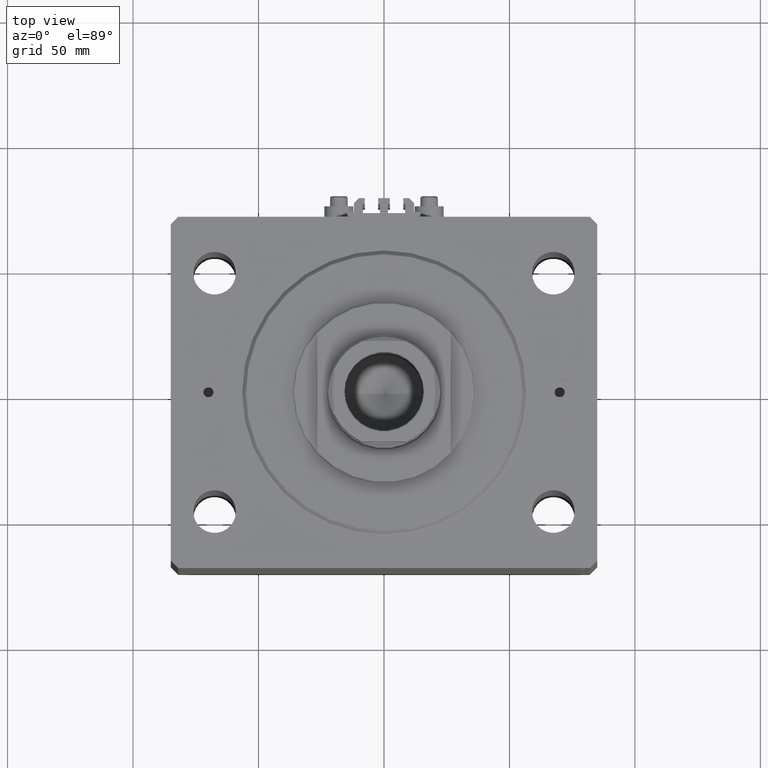
[diagram: clean part render]
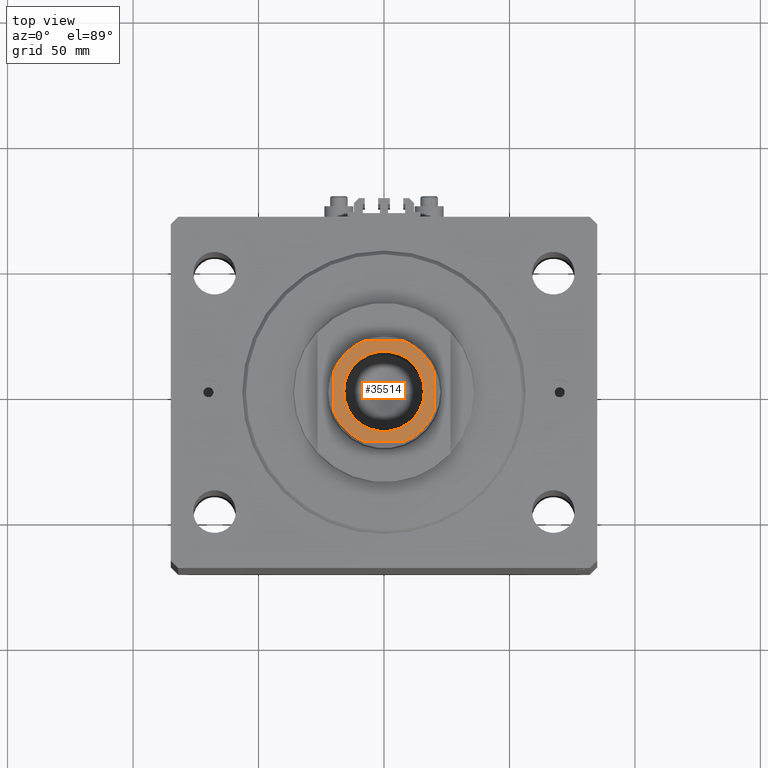
[diagram: same view with one face highlighted and labeled with its STEP entity id]
A machine part, top view. The second image highlights one B-rep face of the part: STEP entity #35514.
In plain terms, the highlighted planar face has unit normal (0, 0, 1).
Its self-contained STEP definition (entity closure, byte-faithful):
#1074 = CARTESIAN_POINT ( 'NONE',  ( 19.99999999999999645, 20.00000000000000000, 155.1000000000000227 ) ) ;
#1153 = CARTESIAN_POINT ( 'NONE',  ( 0.000000000000000000, 0.000000000000000000, 155.1000000000000227 ) ) ;
#1387 = DIRECTION ( 'NONE',  ( 1.000000000000000000, 0.000000000000000000, 0.000000000000000000 ) ) ;
#1758 = VERTEX_POINT ( 'NONE', #12999 ) ;
#3691 = CARTESIAN_POINT ( 'NONE',  ( -20.00000000000000355, 7.889866919029741688, 155.1000000000000227 ) ) ;
#4238 = CARTESIAN_POINT ( 'NONE',  ( 0.000000000000000000, 0.000000000000000000, 155.1000000000000227 ) ) ;
#4276 = ORIENTED_EDGE ( 'NONE', *, *, #17454, .T. ) ;
#4948 = CIRCLE ( 'NONE', #14820, 21.50000000000000000 ) ;
#5148 = AXIS2_PLACEMENT_3D ( 'NONE', #9349, #17202, #28425 ) ;
#5272 = DIRECTION ( 'NONE',  ( 0.000000000000000000, -0.000000000000000000, -1.000000000000000000 ) ) ;
#7007 = DIRECTION ( 'NONE',  ( -1.000000000000000000, -0.000000000000000000, -0.000000000000000000 ) ) ;
#7218 = VERTEX_POINT ( 'NONE', #39507 ) ;
#7475 = LINE ( 'NONE', #18469, #24191 ) ;
#8252 = ORIENTED_EDGE ( 'NONE', *, *, #21367, .T. ) ;
#8401 = CARTESIAN_POINT ( 'NONE',  ( 0.000000000000000000, 0.000000000000000000, 155.1000000000000227 ) ) ;
#9234 = EDGE_LOOP ( 'NONE', ( #23592, #4276, #9788, #42479, #12797, #34498, #18996, #8252 ) ) ;
#9349 = CARTESIAN_POINT ( 'NONE',  ( 0.000000000000000000, 0.000000000000000000, 155.1000000000000227 ) ) ;
#9575 = VERTEX_POINT ( 'NONE', #41785 ) ;
#9634 = DIRECTION ( 'NONE',  ( 1.000000000000000000, 0.000000000000000000, 0.000000000000000000 ) ) ;
#9788 = ORIENTED_EDGE ( 'NONE', *, *, #17669, .T. ) ;
#10232 = ORIENTED_EDGE ( 'NONE', *, *, #20432, .T. ) ;
#10335 = CARTESIAN_POINT ( 'NONE',  ( 0.000000000000000000, 0.000000000000000000, 155.1000000000000227 ) ) ;
#10729 = DIRECTION ( 'NONE',  ( 1.000000000000000000, 0.000000000000000000, 0.000000000000000000 ) ) ;
#10820 = VERTEX_POINT ( 'NONE', #32410 ) ;
#10947 = DIRECTION ( 'NONE',  ( 1.000000000000000000, 0.000000000000000000, 0.000000000000000000 ) ) ;
#11206 = CIRCLE ( 'NONE', #44731, 16.04999999999995453 ) ;
#12282 = AXIS2_PLACEMENT_3D ( 'NONE', #35083, #47229, #10729 ) ;
#12797 = ORIENTED_EDGE ( 'NONE', *, *, #32443, .T. ) ;
#12999 = CARTESIAN_POINT ( 'NONE',  ( -7.889866919029745240, -20.00000000000000000, 155.1000000000000227 ) ) ;
#13142 = EDGE_CURVE ( 'NONE', #28471, #10820, #14040, .T. ) ;
#14040 = CIRCLE ( 'NONE', #33877, 16.04999999999995453 ) ;
#14535 = FACE_OUTER_BOUND ( 'NONE', #9234, .T. ) ;
#14673 = EDGE_CURVE ( 'NONE', #42085, #9575, #4948, .T. ) ;
#14820 = AXIS2_PLACEMENT_3D ( 'NONE', #20052, #34590, #10947 ) ;
#16051 = LINE ( 'NONE', #30614, #22955 ) ;
#17202 = DIRECTION ( 'NONE',  ( -0.000000000000000000, 0.000000000000000000, 1.000000000000000000 ) ) ;
#17454 = EDGE_CURVE ( 'NONE', #24500, #1758, #33169, .T. ) ;
#17669 = EDGE_CURVE ( 'NONE', #1758, #42085, #42258, .T. ) ;
#18354 = DIRECTION ( 'NONE',  ( 1.000000000000000000, 0.000000000000000000, 0.000000000000000000 ) ) ;
#18469 = CARTESIAN_POINT ( 'NONE',  ( -20.00000000000000355, 20.00000000000000000, 155.1000000000000227 ) ) ;
#18990 = DIRECTION ( 'NONE',  ( -1.734723475976807094E-16, 1.000000000000000000, -0.000000000000000000 ) ) ;
#18996 = ORIENTED_EDGE ( 'NONE', *, *, #25079, .T. ) ;
#19945 = LINE ( 'NONE', #1074, #46524 ) ;
#20052 = CARTESIAN_POINT ( 'NONE',  ( 0.000000000000000000, 0.000000000000000000, 155.1000000000000227 ) ) ;
#20432 = EDGE_CURVE ( 'NONE', #10820, #28471, #11206, .T. ) ;
#21021 = CARTESIAN_POINT ( 'NONE',  ( -20.00000000000000000, -20.00000000000000000, 155.1000000000000227 ) ) ;
#21023 = VECTOR ( 'NONE', #31521, 1000.000000000000000 ) ;
#21367 = EDGE_CURVE ( 'NONE', #45983, #23648, #24943, .T. ) ;
#21442 = CIRCLE ( 'NONE', #12282, 21.50000000000000000 ) ;
#21453 = CARTESIAN_POINT ( 'NONE',  ( -7.889866919029745240, 20.00000000000000000, 155.1000000000000227 ) ) ;
#22417 = ORIENTED_EDGE ( 'NONE', *, *, #13142, .T. ) ;
#22643 = DIRECTION ( 'NONE',  ( -0.000000000000000000, 0.000000000000000000, 1.000000000000000000 ) ) ;
#22955 = VECTOR ( 'NONE', #30145, 1000.000000000000000 ) ;
#22983 = AXIS2_PLACEMENT_3D ( 'NONE', #4238, #22643, #18354 ) ;
#23592 = ORIENTED_EDGE ( 'NONE', *, *, #46414, .T. ) ;
#23648 = VERTEX_POINT ( 'NONE', #3691 ) ;
#24191 = VECTOR ( 'NONE', #7007, 1000.000000000000000 ) ;
#24500 = VERTEX_POINT ( 'NONE', #44143 ) ;
#24943 = CIRCLE ( 'NONE', #5148, 21.50000000000000000 ) ;
#25079 = EDGE_CURVE ( 'NONE', #44886, #45983, #7475, .T. ) ;
#28425 = DIRECTION ( 'NONE',  ( 1.000000000000000000, 0.000000000000000000, 0.000000000000000000 ) ) ;
#28471 = VERTEX_POINT ( 'NONE', #36419 ) ;
#30145 = DIRECTION ( 'NONE',  ( 8.673617379884035472E-17, -1.000000000000000000, 0.000000000000000000 ) ) ;
#30257 = EDGE_CURVE ( 'NONE', #7218, #44886, #21442, .T. ) ;
#30614 = CARTESIAN_POINT ( 'NONE',  ( -20.00000000000000355, 20.00000000000000000, 155.1000000000000227 ) ) ;
#31521 = DIRECTION ( 'NONE',  ( 1.000000000000000000, 0.000000000000000000, 0.000000000000000000 ) ) ;
#32410 = CARTESIAN_POINT ( 'NONE',  ( 16.04999999999995453, 0.000000000000000000, 155.1000000000000227 ) ) ;
#32443 = EDGE_CURVE ( 'NONE', #9575, #7218, #19945, .T. ) ;
#33169 = CIRCLE ( 'NONE', #39283, 21.50000000000000000 ) ;
#33877 = AXIS2_PLACEMENT_3D ( 'NONE', #1153, #37686, #1387 ) ;
#34498 = ORIENTED_EDGE ( 'NONE', *, *, #30257, .T. ) ;
#34590 = DIRECTION ( 'NONE',  ( -0.000000000000000000, 0.000000000000000000, 1.000000000000000000 ) ) ;
#35083 = CARTESIAN_POINT ( 'NONE',  ( 0.000000000000000000, 0.000000000000000000, 155.1000000000000227 ) ) ;
#35514 = ADVANCED_FACE ( 'NONE', ( #40772, #14535 ), #44354, .T. ) ;
#36419 = CARTESIAN_POINT ( 'NONE',  ( -16.04999999999995453, 1.965558112631495894E-15, 155.1000000000000227 ) ) ;
#37196 = CARTESIAN_POINT ( 'NONE',  ( 7.889866919029745240, -20.00000000000000000, 155.1000000000000227 ) ) ;
#37608 = EDGE_LOOP ( 'NONE', ( #10232, #22417 ) ) ;
#37686 = DIRECTION ( 'NONE',  ( 0.000000000000000000, -0.000000000000000000, -1.000000000000000000 ) ) ;
#37745 = DIRECTION ( 'NONE',  ( 1.000000000000000000, 0.000000000000000000, 0.000000000000000000 ) ) ;
#39283 = AXIS2_PLACEMENT_3D ( 'NONE', #10335, #42320, #9634 ) ;
#39507 = CARTESIAN_POINT ( 'NONE',  ( 20.00000000000000000, 7.889866919029748793, 155.1000000000000227 ) ) ;
#39509 = CARTESIAN_POINT ( 'NONE',  ( 7.889866919029743464, 20.00000000000000000, 155.1000000000000227 ) ) ;
#40772 = FACE_BOUND ( 'NONE', #37608, .T. ) ;
#41785 = CARTESIAN_POINT ( 'NONE',  ( 20.00000000000000000, -7.889866919029739911, 155.1000000000000227 ) ) ;
#42085 = VERTEX_POINT ( 'NONE', #37196 ) ;
#42258 = LINE ( 'NONE', #21021, #21023 ) ;
#42320 = DIRECTION ( 'NONE',  ( -0.000000000000000000, 0.000000000000000000, 1.000000000000000000 ) ) ;
#42479 = ORIENTED_EDGE ( 'NONE', *, *, #14673, .T. ) ;
#44143 = CARTESIAN_POINT ( 'NONE',  ( -20.00000000000000355, -7.889866919029736358, 155.1000000000000227 ) ) ;
#44354 = PLANE ( 'NONE',  #22983 ) ;
#44731 = AXIS2_PLACEMENT_3D ( 'NONE', #8401, #5272, #37745 ) ;
#44886 = VERTEX_POINT ( 'NONE', #39509 ) ;
#45983 = VERTEX_POINT ( 'NONE', #21453 ) ;
#46414 = EDGE_CURVE ( 'NONE', #23648, #24500, #16051, .T. ) ;
#46524 = VECTOR ( 'NONE', #18990, 1000.000000000000000 ) ;
#47229 = DIRECTION ( 'NONE',  ( -0.000000000000000000, 0.000000000000000000, 1.000000000000000000 ) ) ;